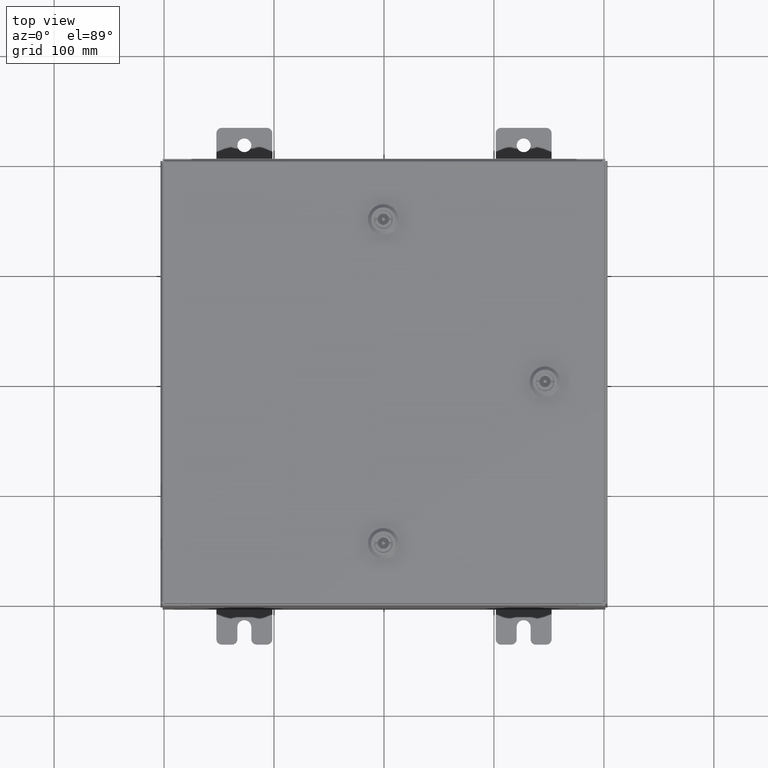
[diagram: clean part render]
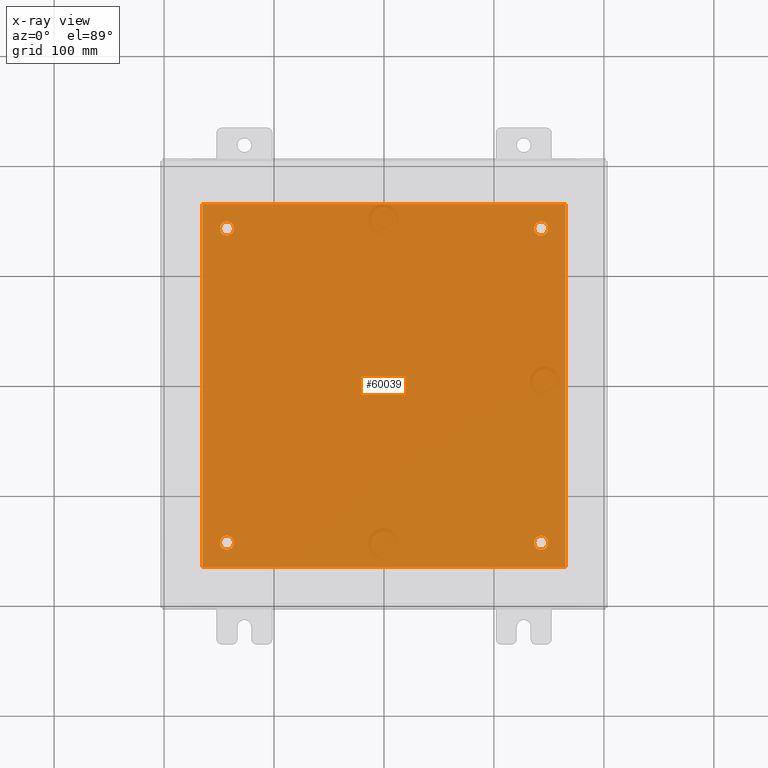
[diagram: x-ray — body ghosted, one internal face saturated and labeled with its STEP entity id]
A machine part, top view, then the same camera in x-ray: the body is ghosted and one INTERNAL B-rep face — a face not visible from any outside direction — is saturated and labeled: STEP entity #60039.
In plain terms, the highlighted planar face has unit normal (0, 0, -1).
Its self-contained STEP definition (entity closure, byte-faithful):
#172 = VECTOR ( 'NONE', #46119, 39.37007874015748100 ) ;
#729 = CARTESIAN_POINT ( 'NONE',  ( 5.625000000000002700, 5.625000000000000900, -0.1040000000000000400 ) ) ;
#958 = ORIENTED_EDGE ( 'NONE', *, *, #7536, .T. ) ;
#1392 = CIRCLE ( 'NONE', #38656, 0.2499999999999987000 ) ;
#1720 = VERTEX_POINT ( 'NONE', #45112 ) ;
#2169 = CARTESIAN_POINT ( 'NONE',  ( -6.500000000000000000, -6.499999999999999100, -0.1040000000000000400 ) ) ;
#3413 = AXIS2_PLACEMENT_3D ( 'NONE', #19712, #53508, #24566 ) ;
#3727 = LINE ( 'NONE', #32343, #55091 ) ;
#3843 = DIRECTION ( 'NONE',  ( -0.0000000000000000000, -0.0000000000000000000, 1.000000000000000000 ) ) ;
#4616 = VERTEX_POINT ( 'NONE', #37622 ) ;
#5557 = DIRECTION ( 'NONE',  ( -1.000000000000000000, 0.0000000000000000000, 0.0000000000000000000 ) ) ;
#5730 = VERTEX_POINT ( 'NONE', #22954 ) ;
#5932 = FACE_OUTER_BOUND ( 'NONE', #12566, .T. ) ;
#6354 = ORIENTED_EDGE ( 'NONE', *, *, #24229, .T. ) ;
#7536 = EDGE_CURVE ( 'NONE', #38160, #25967, #25678, .T. ) ;
#8476 = DIRECTION ( 'NONE',  ( 0.0000000000000000000, 0.0000000000000000000, -1.000000000000000000 ) ) ;
#10359 = CARTESIAN_POINT ( 'NONE',  ( 5.625000000000002700, -5.625000000000000900, -0.1040000000000000400 ) ) ;
#10781 = AXIS2_PLACEMENT_3D ( 'NONE', #10359, #44160, #15202 ) ;
#11632 = CIRCLE ( 'NONE', #52204, 0.2499999999999987000 ) ;
#11838 = DIRECTION ( 'NONE',  ( 1.000000000000000000, 0.0000000000000000000, 0.0000000000000000000 ) ) ;
#12566 = EDGE_LOOP ( 'NONE', ( #59745, #16777, #21533, #25373 ) ) ;
#13337 = AXIS2_PLACEMENT_3D ( 'NONE', #54934, #26003, #59734 ) ;
#13348 = VERTEX_POINT ( 'NONE', #29100 ) ;
#15202 = DIRECTION ( 'NONE',  ( -1.000000000000000000, 0.0000000000000000000, 0.0000000000000000000 ) ) ;
#16011 = AXIS2_PLACEMENT_3D ( 'NONE', #17582, #8476, #42234 ) ;
#16075 = CARTESIAN_POINT ( 'NONE',  ( -6.500000000000000000, -6.499999999999999100, -0.1040000000000000400 ) ) ;
#16777 = ORIENTED_EDGE ( 'NONE', *, *, #46815, .F. ) ;
#17128 = CARTESIAN_POINT ( 'NONE',  ( 5.625000000000002700, 5.625000000000000900, -0.1040000000000000400 ) ) ;
#17450 = CIRCLE ( 'NONE', #18072, 0.2499999999999987000 ) ;
#17582 = CARTESIAN_POINT ( 'NONE',  ( 0.0000000000000000000, 0.0000000000000000000, -0.1040000000000000400 ) ) ;
#18072 = AXIS2_PLACEMENT_3D ( 'NONE', #32703, #3843, #37528 ) ;
#18754 = FACE_BOUND ( 'NONE', #32514, .T. ) ;
#19712 = CARTESIAN_POINT ( 'NONE',  ( -5.625000000000002700, -5.625000000000000900, -0.1040000000000000400 ) ) ;
#20021 = EDGE_LOOP ( 'NONE', ( #23132, #958 ) ) ;
#20146 = EDGE_CURVE ( 'NONE', #5730, #48028, #11632, .T. ) ;
#20305 = FACE_BOUND ( 'NONE', #57855, .T. ) ;
#20387 = VERTEX_POINT ( 'NONE', #33567 ) ;
#20597 = EDGE_CURVE ( 'NONE', #31382, #1720, #62213, .T. ) ;
#20706 = CIRCLE ( 'NONE', #3413, 0.2499999999999998100 ) ;
#21533 = ORIENTED_EDGE ( 'NONE', *, *, #50998, .F. ) ;
#21972 = DIRECTION ( 'NONE',  ( -1.000000000000000000, 0.0000000000000000000, 0.0000000000000000000 ) ) ;
#22954 = CARTESIAN_POINT ( 'NONE',  ( 5.375000000000003600, 5.625000000000000900, -0.1040000000000000400 ) ) ;
#23132 = ORIENTED_EDGE ( 'NONE', *, *, #24101, .T. ) ;
#24101 = EDGE_CURVE ( 'NONE', #25967, #38160, #20706, .T. ) ;
#24229 = EDGE_CURVE ( 'NONE', #13348, #59380, #43364, .T. ) ;
#24566 = DIRECTION ( 'NONE',  ( -1.000000000000000000, 0.0000000000000000000, 0.0000000000000000000 ) ) ;
#25002 = CARTESIAN_POINT ( 'NONE',  ( -5.375000000000002700, -5.625000000000000900, -0.1040000000000000400 ) ) ;
#25290 = DIRECTION ( 'NONE',  ( -0.0000000000000000000, -0.0000000000000000000, 1.000000000000000000 ) ) ;
#25373 = ORIENTED_EDGE ( 'NONE', *, *, #30681, .F. ) ;
#25420 = CARTESIAN_POINT ( 'NONE',  ( -5.625000000000002700, 5.625000000000000900, -0.1040000000000000400 ) ) ;
#25678 = CIRCLE ( 'NONE', #45593, 0.2499999999999998100 ) ;
#25845 = LINE ( 'NONE', #41231, #172 ) ;
#25967 = VERTEX_POINT ( 'NONE', #25002 ) ;
#26003 = DIRECTION ( 'NONE',  ( -0.0000000000000000000, -0.0000000000000000000, 1.000000000000000000 ) ) ;
#26748 = CIRCLE ( 'NONE', #13337, 0.2499999999999998100 ) ;
#27253 = CIRCLE ( 'NONE', #10781, 0.2499999999999987000 ) ;
#28375 = EDGE_CURVE ( 'NONE', #29176, #4616, #27253, .T. ) ;
#28575 = CARTESIAN_POINT ( 'NONE',  ( -5.375000000000002700, 5.625000000000000900, -0.1040000000000000400 ) ) ;
#29100 = CARTESIAN_POINT ( 'NONE',  ( -5.875000000000001800, 5.625000000000000900, -0.1040000000000000400 ) ) ;
#29176 = VERTEX_POINT ( 'NONE', #51720 ) ;
#30248 = DIRECTION ( 'NONE',  ( -1.000000000000000000, 0.0000000000000000000, 0.0000000000000000000 ) ) ;
#30368 = CARTESIAN_POINT ( 'NONE',  ( 5.875000000000000900, 5.625000000000000900, -0.1040000000000000400 ) ) ;
#30681 = EDGE_CURVE ( 'NONE', #1720, #20387, #3727, .T. ) ;
#31118 = VERTEX_POINT ( 'NONE', #16075 ) ;
#31382 = VERTEX_POINT ( 'NONE', #32671 ) ;
#31627 = FACE_BOUND ( 'NONE', #20021, .T. ) ;
#32343 = CARTESIAN_POINT ( 'NONE',  ( -6.500000000000000000, 6.500000000000000900, -0.1040000000000000400 ) ) ;
#32514 = EDGE_LOOP ( 'NONE', ( #49975, #6354 ) ) ;
#32623 = CARTESIAN_POINT ( 'NONE',  ( -5.875000000000001800, -5.625000000000000900, -0.1040000000000000400 ) ) ;
#32671 = CARTESIAN_POINT ( 'NONE',  ( 6.500000000000000000, -6.499999999999999100, -0.1040000000000000400 ) ) ;
#32703 = CARTESIAN_POINT ( 'NONE',  ( 5.625000000000002700, -5.625000000000000900, -0.1040000000000000400 ) ) ;
#33567 = CARTESIAN_POINT ( 'NONE',  ( -6.500000000000000000, 6.500000000000000900, -0.1040000000000000400 ) ) ;
#34453 = DIRECTION ( 'NONE',  ( -0.0000000000000000000, -0.0000000000000000000, 1.000000000000000000 ) ) ;
#37267 = ORIENTED_EDGE ( 'NONE', *, *, #28375, .T. ) ;
#37413 = ORIENTED_EDGE ( 'NONE', *, *, #20146, .T. ) ;
#37528 = DIRECTION ( 'NONE',  ( -1.000000000000000000, 0.0000000000000000000, 0.0000000000000000000 ) ) ;
#37622 = CARTESIAN_POINT ( 'NONE',  ( 5.375000000000003600, -5.625000000000000900, -0.1040000000000000400 ) ) ;
#37976 = VECTOR ( 'NONE', #11838, 39.37007874015748100 ) ;
#38160 = VERTEX_POINT ( 'NONE', #32623 ) ;
#38656 = AXIS2_PLACEMENT_3D ( 'NONE', #729, #34453, #5557 ) ;
#41231 = CARTESIAN_POINT ( 'NONE',  ( -6.500000000000000000, -6.499999999999999100, -0.1040000000000000400 ) ) ;
#41892 = EDGE_CURVE ( 'NONE', #48028, #5730, #1392, .T. ) ;
#42071 = DIRECTION ( 'NONE',  ( -1.000000000000000000, -0.0000000000000000000, -0.0000000000000000000 ) ) ;
#42234 = DIRECTION ( 'NONE',  ( -1.000000000000000000, 0.0000000000000000000, -0.0000000000000000000 ) ) ;
#43364 = CIRCLE ( 'NONE', #59575, 0.2499999999999998100 ) ;
#44160 = DIRECTION ( 'NONE',  ( -0.0000000000000000000, -0.0000000000000000000, 1.000000000000000000 ) ) ;
#45112 = CARTESIAN_POINT ( 'NONE',  ( 6.500000000000000000, 6.500000000000000900, -0.1040000000000000400 ) ) ;
#45593 = AXIS2_PLACEMENT_3D ( 'NONE', #54221, #25290, #59039 ) ;
#46119 = DIRECTION ( 'NONE',  ( -0.0000000000000000000, -1.000000000000000000, -0.0000000000000000000 ) ) ;
#46739 = EDGE_CURVE ( 'NONE', #59380, #13348, #26748, .T. ) ;
#46815 = EDGE_CURVE ( 'NONE', #31118, #31382, #50927, .T. ) ;
#46906 = PLANE ( 'NONE',  #16011 ) ;
#47451 = CARTESIAN_POINT ( 'NONE',  ( 6.500000000000000000, -6.499999999999999100, -0.1040000000000000400 ) ) ;
#47467 = FACE_BOUND ( 'NONE', #57917, .T. ) ;
#48028 = VERTEX_POINT ( 'NONE', #30368 ) ;
#49393 = VECTOR ( 'NONE', #52329, 39.37007874015748100 ) ;
#49975 = ORIENTED_EDGE ( 'NONE', *, *, #46739, .T. ) ;
#50912 = DIRECTION ( 'NONE',  ( -0.0000000000000000000, -0.0000000000000000000, 1.000000000000000000 ) ) ;
#50927 = LINE ( 'NONE', #2169, #37976 ) ;
#50998 = EDGE_CURVE ( 'NONE', #20387, #31118, #25845, .T. ) ;
#51720 = CARTESIAN_POINT ( 'NONE',  ( 5.875000000000000900, -5.625000000000000900, -0.1040000000000000400 ) ) ;
#52204 = AXIS2_PLACEMENT_3D ( 'NONE', #17128, #50912, #21972 ) ;
#52329 = DIRECTION ( 'NONE',  ( 0.0000000000000000000, 1.000000000000000000, 0.0000000000000000000 ) ) ;
#53508 = DIRECTION ( 'NONE',  ( -0.0000000000000000000, -0.0000000000000000000, 1.000000000000000000 ) ) ;
#54221 = CARTESIAN_POINT ( 'NONE',  ( -5.625000000000002700, -5.625000000000000900, -0.1040000000000000400 ) ) ;
#54934 = CARTESIAN_POINT ( 'NONE',  ( -5.625000000000002700, 5.625000000000000900, -0.1040000000000000400 ) ) ;
#55091 = VECTOR ( 'NONE', #42071, 39.37007874015748100 ) ;
#55804 = EDGE_CURVE ( 'NONE', #4616, #29176, #17450, .T. ) ;
#57855 = EDGE_LOOP ( 'NONE', ( #37267, #59224 ) ) ;
#57917 = EDGE_LOOP ( 'NONE', ( #62535, #37413 ) ) ;
#59039 = DIRECTION ( 'NONE',  ( -1.000000000000000000, 0.0000000000000000000, 0.0000000000000000000 ) ) ;
#59158 = DIRECTION ( 'NONE',  ( -0.0000000000000000000, -0.0000000000000000000, 1.000000000000000000 ) ) ;
#59224 = ORIENTED_EDGE ( 'NONE', *, *, #55804, .T. ) ;
#59380 = VERTEX_POINT ( 'NONE', #28575 ) ;
#59575 = AXIS2_PLACEMENT_3D ( 'NONE', #25420, #59158, #30248 ) ;
#59734 = DIRECTION ( 'NONE',  ( -1.000000000000000000, 0.0000000000000000000, 0.0000000000000000000 ) ) ;
#59745 = ORIENTED_EDGE ( 'NONE', *, *, #20597, .F. ) ;
#60039 = ADVANCED_FACE ( 'NONE', ( #31627, #20305, #47467, #18754, #5932 ), #46906, .T. ) ;
#62213 = LINE ( 'NONE', #47451, #49393 ) ;
#62535 = ORIENTED_EDGE ( 'NONE', *, *, #41892, .T. ) ;